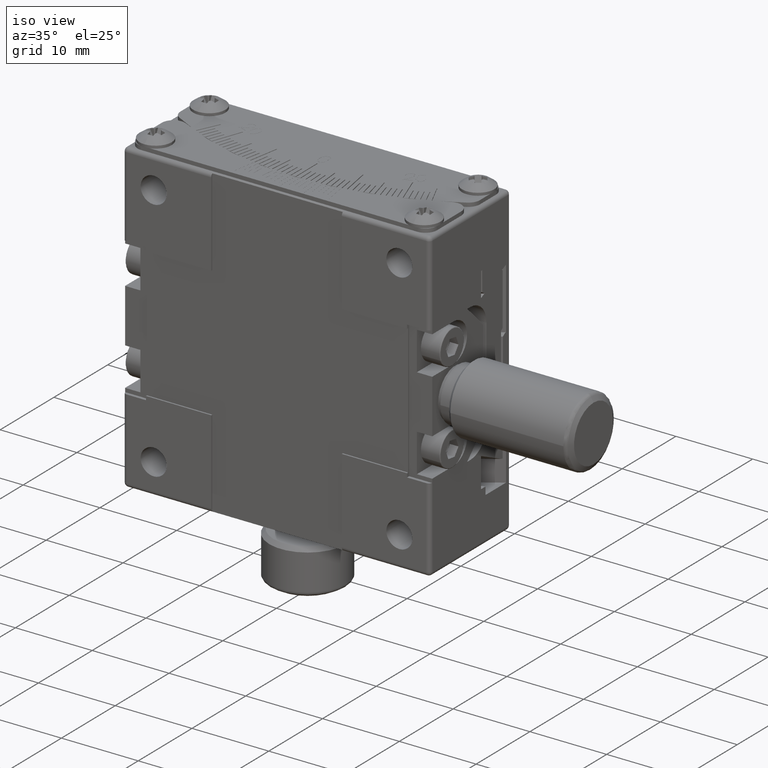
[diagram: clean part render]
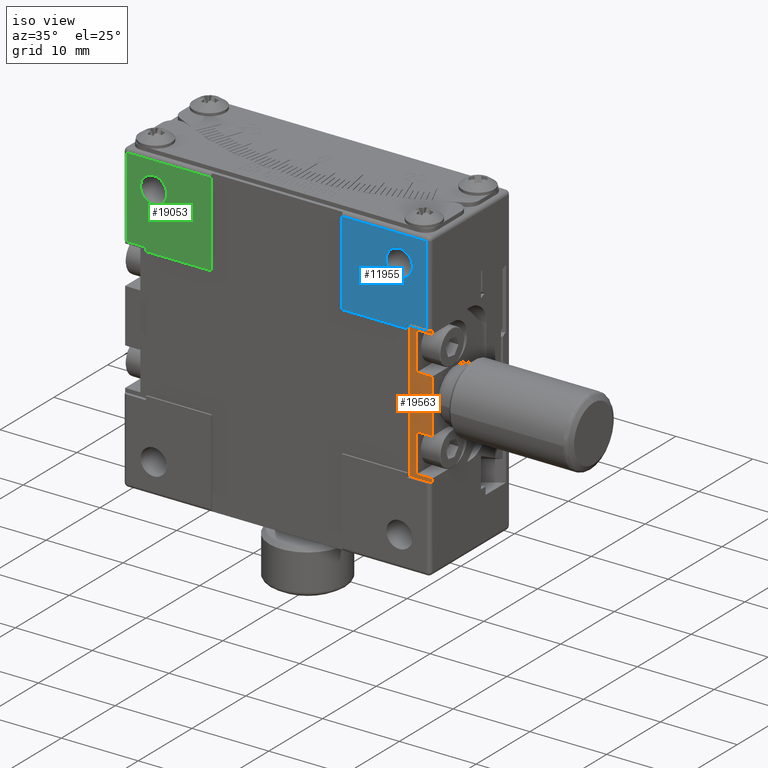
[diagram: same view with three faces highlighted in distinct colors, each labeled with its STEP entity id]
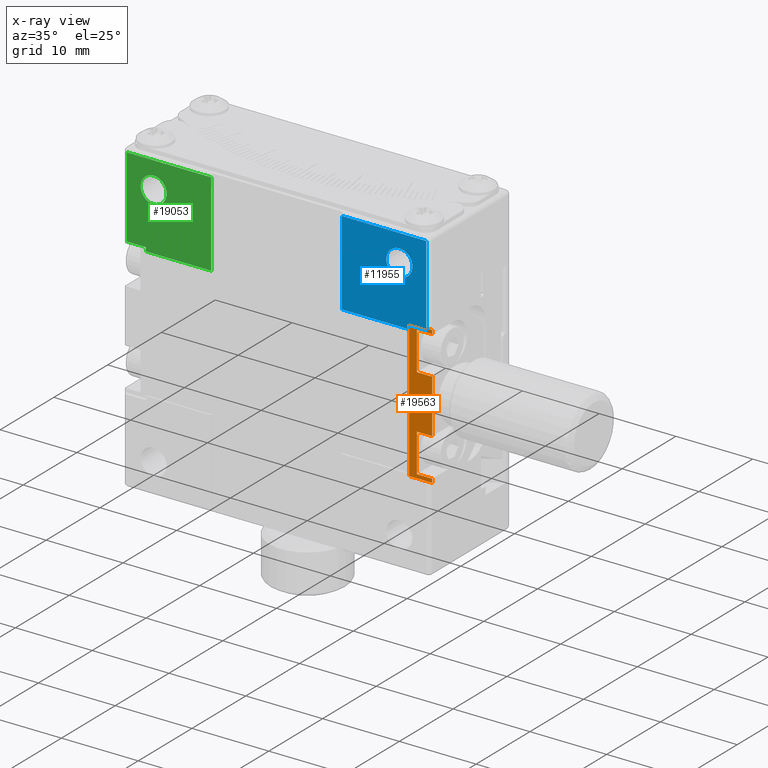
[diagram: x-ray of the same camera — body ghosted, the three highlighted faces saturated]
A machine part, iso view with three faces highlighted in distinct colors.
The next image is the same camera in x-ray (body ghosted, the three faces saturated) — at least one of them is partly hidden behind the body in this view.
Their STEP definitions:

[orange] entity #19563 — the highlighted planar face has unit normal (0, 1, 0).
#74 = EDGE_CURVE ( 'NONE', #3429, #2814, #4536, .T. ) ;
#96 = AXIS2_PLACEMENT_3D ( 'NONE', #27440, #11293, #26867 ) ;
#136 = FACE_OUTER_BOUND ( 'NONE', #6064, .T. ) ;
#151 = DIRECTION ( 'NONE',  ( -1.000000000000000000, 5.419128459088559373E-17, 2.053761849782280191E-19 ) ) ;
#413 = ORIENTED_EDGE ( 'NONE', *, *, #12086, .F. ) ;
#559 = PLANE ( 'NONE',  #96 ) ;
#628 = VECTOR ( 'NONE', #151, 1000.000000000000000 ) ;
#752 = CARTESIAN_POINT ( 'NONE',  ( 17.00000000000000000, 0.4000000000000065170, 9.000000000000000000 ) ) ;
#778 = LINE ( 'NONE', #9603, #24970 ) ;
#845 = CARTESIAN_POINT ( 'NONE',  ( 18.00000000000000000, 0.4000000000000060174, 8.500000000000000000 ) ) ;
#1062 = ORIENTED_EDGE ( 'NONE', *, *, #11720, .T. ) ;
#1256 = VERTEX_POINT ( 'NONE', #10592 ) ;
#1401 = LINE ( 'NONE', #16677, #3801 ) ;
#1622 = EDGE_CURVE ( 'NONE', #24540, #1256, #21567, .T. ) ;
#2502 = LINE ( 'NONE', #18199, #628 ) ;
#2814 = VERTEX_POINT ( 'NONE', #21132 ) ;
#3208 = VECTOR ( 'NONE', #15103, 1000.000000000000000 ) ;
#3429 = VERTEX_POINT ( 'NONE', #16664 ) ;
#3571 = ORIENTED_EDGE ( 'NONE', *, *, #8883, .F. ) ;
#3801 = VECTOR ( 'NONE', #8012, 1000.000000000000000 ) ;
#4293 = VECTOR ( 'NONE', #18372, 1000.000000000000000 ) ;
#4536 = LINE ( 'NONE', #9509, #21882 ) ;
#5028 = CARTESIAN_POINT ( 'NONE',  ( 20.00000000000000000, 0.4000000000000060174, -9.000000000000000000 ) ) ;
#5312 = LINE ( 'NONE', #752, #4293 ) ;
#5513 = DIRECTION ( 'NONE',  ( 1.000000000000000000, -5.419128459088559373E-17, -2.053761849782280191E-19 ) ) ;
#5653 = LINE ( 'NONE', #19147, #27222 ) ;
#5780 = EDGE_CURVE ( 'NONE', #23413, #22223, #12555, .T. ) ;
#6064 = EDGE_LOOP ( 'NONE', ( #20745, #1062, #28364, #3571, #23333, #14900, #15729, #23854, #25422, #28958, #10294, #24576, #413, #22881 ) ) ;
#6232 = EDGE_CURVE ( 'NONE', #2814, #10015, #8692, .T. ) ;
#6294 = LINE ( 'NONE', #6730, #9519 ) ;
#6362 = VECTOR ( 'NONE', #5513, 1000.000000000000000 ) ;
#6500 = EDGE_CURVE ( 'NONE', #24540, #27684, #25398, .T. ) ;
#6592 = VERTEX_POINT ( 'NONE', #12042 ) ;
#6730 = CARTESIAN_POINT ( 'NONE',  ( 18.00000000000000000, 0.4000000000000060174, -8.500000000000000000 ) ) ;
#7044 = CARTESIAN_POINT ( 'NONE',  ( 20.00000000000000000, 0.4000000000000060174, 3.500000000000000000 ) ) ;
#7538 = DIRECTION ( 'NONE',  ( -2.053761849782180283E-19, -1.112959928834533873E-35, -1.000000000000000000 ) ) ;
#7551 = VECTOR ( 'NONE', #13057, 1000.000000000000000 ) ;
#7929 = CARTESIAN_POINT ( 'NONE',  ( 9.799390266571641916, 0.4000000000000065170, 8.500000000000000000 ) ) ;
#8012 = DIRECTION ( 'NONE',  ( -2.053761849782180283E-19, -1.112959928834533873E-35, -1.000000000000000000 ) ) ;
#8397 = DIRECTION ( 'NONE',  ( 1.000000000000000000, -5.419128459088559373E-17, -2.053761849782280191E-19 ) ) ;
#8692 = LINE ( 'NONE', #21906, #19212 ) ;
#8803 = VERTEX_POINT ( 'NONE', #12248 ) ;
#8883 = EDGE_CURVE ( 'NONE', #1256, #20627, #5653, .T. ) ;
#9509 = CARTESIAN_POINT ( 'NONE',  ( 20.00000000000000000, 0.4000000000000060174, 9.000000000000000000 ) ) ;
#9519 = VECTOR ( 'NONE', #19779, 1000.000000000000000 ) ;
#9603 = CARTESIAN_POINT ( 'NONE',  ( 20.00000000000000000, 0.4000000000000060174, 9.000000000000000000 ) ) ;
#10015 = VERTEX_POINT ( 'NONE', #28582 ) ;
#10294 = ORIENTED_EDGE ( 'NONE', *, *, #23393, .F. ) ;
#10592 = CARTESIAN_POINT ( 'NONE',  ( 18.00000000000000000, 0.4000000000000060174, 3.500000000000000000 ) ) ;
#10604 = DIRECTION ( 'NONE',  ( -1.000000000000000000, 5.419128459088559373E-17, 2.053761849782280191E-19 ) ) ;
#10830 = VECTOR ( 'NONE', #8397, 1000.000000000000000 ) ;
#11293 = DIRECTION ( 'NONE',  ( 5.419128459088559373E-17, 1.000000000000000000, 1.112959928834513827E-35 ) ) ;
#11720 = EDGE_CURVE ( 'NONE', #19997, #8803, #26607, .T. ) ;
#12042 = CARTESIAN_POINT ( 'NONE',  ( 19.98989794855664925, 0.4000000000000060174, -9.000000000000000000 ) ) ;
#12086 = EDGE_CURVE ( 'NONE', #22223, #26857, #13357, .T. ) ;
#12248 = CARTESIAN_POINT ( 'NONE',  ( 20.00000000000000000, 0.4000000000000060174, -3.500000000000000000 ) ) ;
#12333 = VECTOR ( 'NONE', #19229, 1000.000000000000000 ) ;
#12555 = LINE ( 'NONE', #17229, #6362 ) ;
#13057 = DIRECTION ( 'NONE',  ( -2.053761849782180283E-19, -1.112959928834533873E-35, -1.000000000000000000 ) ) ;
#13357 = LINE ( 'NONE', #19805, #7551 ) ;
#13519 = CARTESIAN_POINT ( 'NONE',  ( 18.00000000000000000, 0.4000000000000060174, -8.500000000000000000 ) ) ;
#13589 = EDGE_CURVE ( 'NONE', #3429, #27684, #1401, .T. ) ;
#14118 = CARTESIAN_POINT ( 'NONE',  ( 20.00000000000000000, 0.4000000000000060174, -8.500000000000000000 ) ) ;
#14366 = EDGE_CURVE ( 'NONE', #10015, #23839, #5312, .T. ) ;
#14658 = CARTESIAN_POINT ( 'NONE',  ( 20.00000000000000000, 0.4000000000000060174, -9.000000000000000000 ) ) ;
#14900 = ORIENTED_EDGE ( 'NONE', *, *, #6500, .T. ) ;
#15103 = DIRECTION ( 'NONE',  ( -2.053761849782180283E-19, -1.112959928834533873E-35, -1.000000000000000000 ) ) ;
#15729 = ORIENTED_EDGE ( 'NONE', *, *, #13589, .F. ) ;
#16025 = LINE ( 'NONE', #5028, #24511 ) ;
#16664 = CARTESIAN_POINT ( 'NONE',  ( 20.00000000000000000, 0.4000000000000060174, 9.000000000000000000 ) ) ;
#16677 = CARTESIAN_POINT ( 'NONE',  ( 20.00000000000000000, 0.4000000000000060174, 9.000000000000000000 ) ) ;
#17229 = CARTESIAN_POINT ( 'NONE',  ( 9.799390266571641916, 0.4000000000000065170, -8.500000000000000000 ) ) ;
#18199 = CARTESIAN_POINT ( 'NONE',  ( 20.00000000000000000, 0.4000000000000060174, -9.000000000000000000 ) ) ;
#18372 = DIRECTION ( 'NONE',  ( -2.053761849782180283E-19, -1.112959928834533873E-35, -1.000000000000000000 ) ) ;
#18458 = DIRECTION ( 'NONE',  ( -1.000000000000000000, 5.419128459088559373E-17, 2.053761849782280191E-19 ) ) ;
#18881 = EDGE_CURVE ( 'NONE', #20627, #8803, #778, .T. ) ;
#19147 = CARTESIAN_POINT ( 'NONE',  ( 9.799390266571641916, 0.4000000000000065170, 3.500000000000000000 ) ) ;
#19212 = VECTOR ( 'NONE', #10604, 1000.000000000000000 ) ;
#19229 = DIRECTION ( 'NONE',  ( 1.000000000000000000, -5.419128459088559373E-17, -2.053761849782280191E-19 ) ) ;
#19467 = CARTESIAN_POINT ( 'NONE',  ( 17.00000000000000000, 0.4000000000000060174, -9.000000000000000000 ) ) ;
#19563 = ADVANCED_FACE ( 'NONE', ( #136 ), #559, .F. ) ;
#19779 = DIRECTION ( 'NONE',  ( -2.053761849782180283E-19, -1.112959928834533873E-35, -1.000000000000000000 ) ) ;
#19805 = CARTESIAN_POINT ( 'NONE',  ( 20.00000000000000000, 0.4000000000000060174, 9.000000000000000000 ) ) ;
#19997 = VERTEX_POINT ( 'NONE', #20787 ) ;
#20368 = CARTESIAN_POINT ( 'NONE',  ( 20.00000000000000000, 0.4000000000000060174, 8.500000000000000000 ) ) ;
#20627 = VERTEX_POINT ( 'NONE', #7044 ) ;
#20745 = ORIENTED_EDGE ( 'NONE', *, *, #22706, .F. ) ;
#20787 = CARTESIAN_POINT ( 'NONE',  ( 18.00000000000000000, 0.4000000000000060174, -3.500000000000000000 ) ) ;
#20961 = EDGE_CURVE ( 'NONE', #26857, #6592, #16025, .T. ) ;
#21132 = CARTESIAN_POINT ( 'NONE',  ( 19.98989794855664925, 0.4000000000000060174, 9.000000000000000000 ) ) ;
#21567 = LINE ( 'NONE', #23920, #3208 ) ;
#21882 = VECTOR ( 'NONE', #18458, 1000.000000000000000 ) ;
#21906 = CARTESIAN_POINT ( 'NONE',  ( 20.00000000000000000, 0.4000000000000060174, 9.000000000000000000 ) ) ;
#22196 = CARTESIAN_POINT ( 'NONE',  ( 9.799390266571641916, 0.4000000000000065170, -3.500000000000000000 ) ) ;
#22223 = VERTEX_POINT ( 'NONE', #14118 ) ;
#22706 = EDGE_CURVE ( 'NONE', #19997, #23413, #6294, .T. ) ;
#22881 = ORIENTED_EDGE ( 'NONE', *, *, #5780, .F. ) ;
#23333 = ORIENTED_EDGE ( 'NONE', *, *, #1622, .F. ) ;
#23393 = EDGE_CURVE ( 'NONE', #6592, #23839, #2502, .T. ) ;
#23413 = VERTEX_POINT ( 'NONE', #13519 ) ;
#23712 = DIRECTION ( 'NONE',  ( 1.000000000000000000, -5.419128459088559373E-17, -2.053761849782280191E-19 ) ) ;
#23839 = VERTEX_POINT ( 'NONE', #19467 ) ;
#23854 = ORIENTED_EDGE ( 'NONE', *, *, #74, .T. ) ;
#23920 = CARTESIAN_POINT ( 'NONE',  ( 18.00000000000000000, 0.4000000000000060174, 8.500000000000000000 ) ) ;
#24511 = VECTOR ( 'NONE', #25132, 1000.000000000000000 ) ;
#24540 = VERTEX_POINT ( 'NONE', #845 ) ;
#24576 = ORIENTED_EDGE ( 'NONE', *, *, #20961, .F. ) ;
#24970 = VECTOR ( 'NONE', #7538, 1000.000000000000000 ) ;
#25132 = DIRECTION ( 'NONE',  ( -1.000000000000000000, 5.419128459088559373E-17, 2.053761849782280191E-19 ) ) ;
#25398 = LINE ( 'NONE', #7929, #12333 ) ;
#25422 = ORIENTED_EDGE ( 'NONE', *, *, #6232, .T. ) ;
#26607 = LINE ( 'NONE', #22196, #10830 ) ;
#26857 = VERTEX_POINT ( 'NONE', #14658 ) ;
#26867 = DIRECTION ( 'NONE',  ( 1.000000000000000000, -5.419128459088559373E-17, 0.000000000000000000 ) ) ;
#27222 = VECTOR ( 'NONE', #23712, 1000.000000000000000 ) ;
#27440 = CARTESIAN_POINT ( 'NONE',  ( 20.00000000000000000, 0.4000000000000060174, 9.000000000000000000 ) ) ;
#27684 = VERTEX_POINT ( 'NONE', #20368 ) ;
#28364 = ORIENTED_EDGE ( 'NONE', *, *, #18881, .F. ) ;
#28582 = CARTESIAN_POINT ( 'NONE',  ( 17.00000000000000000, 0.4000000000000060174, 9.000000000000000000 ) ) ;
#28958 = ORIENTED_EDGE ( 'NONE', *, *, #14366, .T. ) ;

[blue] entity #11955 — the highlighted planar face has unit normal (-0, 1, 0).
#218 = CARTESIAN_POINT ( 'NONE',  ( 16.00000000000000000, 0.000000000000000000, 16.00000000000000000 ) ) ;
#841 = VECTOR ( 'NONE', #23513, 1000.000000000000000 ) ;
#1111 = EDGE_CURVE ( 'NONE', #23588, #16554, #5616, .T. ) ;
#1326 = FACE_OUTER_BOUND ( 'NONE', #15765, .T. ) ;
#1450 = LINE ( 'NONE', #26257, #8235 ) ;
#2067 = VERTEX_POINT ( 'NONE', #12832 ) ;
#2135 = DIRECTION ( 'NONE',  ( 0.000000000000000000, 0.000000000000000000, 1.000000000000000000 ) ) ;
#2796 = CARTESIAN_POINT ( 'NONE',  ( 16.00000000000000000, 0.000000000000000000, 16.00000000000000000 ) ) ;
#2838 = ORIENTED_EDGE ( 'NONE', *, *, #28900, .F. ) ;
#3093 = DIRECTION ( 'NONE',  ( 1.000000000000000000, 1.734723475976804876E-16, 0.000000000000000000 ) ) ;
#3320 = EDGE_CURVE ( 'NONE', #23965, #10522, #27107, .T. ) ;
#4043 = EDGE_CURVE ( 'NONE', #2067, #23965, #1450, .T. ) ;
#4628 = ORIENTED_EDGE ( 'NONE', *, *, #4795, .F. ) ;
#4759 = AXIS2_PLACEMENT_3D ( 'NONE', #23792, #8076, #3093 ) ;
#4795 = EDGE_CURVE ( 'NONE', #22335, #23588, #16940, .T. ) ;
#5298 = CARTESIAN_POINT ( 'NONE',  ( 8.500000000000000000, 6.938893903907229955E-15, 19.50000000000000000 ) ) ;
#5616 = LINE ( 'NONE', #11780, #841 ) ;
#6843 = CARTESIAN_POINT ( 'NONE',  ( 8.500000000000000000, 6.938893903907229955E-15, 20.00000000000000000 ) ) ;
#7068 = DIRECTION ( 'NONE',  ( 0.000000000000000000, 0.000000000000000000, 1.000000000000000000 ) ) ;
#7792 = PLANE ( 'NONE',  #4759 ) ;
#8076 = DIRECTION ( 'NONE',  ( -1.734723475976804876E-16, 1.000000000000000000, 0.000000000000000000 ) ) ;
#8235 = VECTOR ( 'NONE', #15101, 1000.000000000000000 ) ;
#8511 = VECTOR ( 'NONE', #27521, 1000.000000000000000 ) ;
#9113 = VECTOR ( 'NONE', #26528, 1000.000000000000000 ) ;
#9444 = VECTOR ( 'NONE', #26271, 1000.000000000000000 ) ;
#9542 = CARTESIAN_POINT ( 'NONE',  ( 17.00000000000000000, 6.938893903907229955E-15, 8.500000000000000000 ) ) ;
#9556 = ORIENTED_EDGE ( 'NONE', *, *, #21568, .T. ) ;
#10522 = VERTEX_POINT ( 'NONE', #5298 ) ;
#10599 = EDGE_CURVE ( 'NONE', #21967, #14029, #21452, .T. ) ;
#11780 = CARTESIAN_POINT ( 'NONE',  ( 8.500000000000000000, 6.938893903907229955E-15, 8.500000000000000000 ) ) ;
#11955 = ADVANCED_FACE ( 'NONE', ( #1326, #19231 ), #7792, .F. ) ;
#12109 = EDGE_CURVE ( 'NONE', #22335, #2067, #26571, .T. ) ;
#12242 = CARTESIAN_POINT ( 'NONE',  ( 8.500000000000000000, 6.938893903907229955E-15, 8.500000000000000000 ) ) ;
#12401 = CARTESIAN_POINT ( 'NONE',  ( 17.00000000000000000, 6.938893903907229955E-15, 9.000000000000000000 ) ) ;
#12832 = CARTESIAN_POINT ( 'NONE',  ( 19.50000000000000000, 6.938893903907229955E-15, 9.000000000000000000 ) ) ;
#12835 = EDGE_LOOP ( 'NONE', ( #9556, #20017 ) ) ;
#14029 = VERTEX_POINT ( 'NONE', #15278 ) ;
#14597 = ORIENTED_EDGE ( 'NONE', *, *, #12109, .T. ) ;
#15101 = DIRECTION ( 'NONE',  ( 0.000000000000000000, 0.000000000000000000, 1.000000000000000000 ) ) ;
#15128 = CARTESIAN_POINT ( 'NONE',  ( 17.00000000000000000, 6.938893903907229955E-15, 9.000000000000000000 ) ) ;
#15278 = CARTESIAN_POINT ( 'NONE',  ( 16.00000000000000000, 0.000000000000000000, 17.69999999999999929 ) ) ;
#15765 = EDGE_LOOP ( 'NONE', ( #20314, #20850, #2838, #24499, #4628, #14597 ) ) ;
#16554 = VERTEX_POINT ( 'NONE', #12242 ) ;
#16940 = LINE ( 'NONE', #12401, #24183 ) ;
#17016 = AXIS2_PLACEMENT_3D ( 'NONE', #218, #17691, #2135 ) ;
#17308 = CARTESIAN_POINT ( 'NONE',  ( 17.00000000000000000, 6.938893903907229955E-15, 9.000000000000000000 ) ) ;
#17560 = CARTESIAN_POINT ( 'NONE',  ( 8.500000000000000000, 6.938893903907229955E-15, 19.50000000000000000 ) ) ;
#17691 = DIRECTION ( 'NONE',  ( 0.000000000000000000, 1.000000000000000000, 0.000000000000000000 ) ) ;
#19009 = DIRECTION ( 'NONE',  ( 0.000000000000000000, 0.000000000000000000, -1.000000000000000000 ) ) ;
#19231 = FACE_BOUND ( 'NONE', #12835, .T. ) ;
#19749 = CARTESIAN_POINT ( 'NONE',  ( 19.50000000000000000, 6.938893903907229955E-15, 19.50000000000000000 ) ) ;
#19830 = CIRCLE ( 'NONE', #17016, 1.700000000000000178 ) ;
#20017 = ORIENTED_EDGE ( 'NONE', *, *, #10599, .T. ) ;
#20314 = ORIENTED_EDGE ( 'NONE', *, *, #4043, .T. ) ;
#20850 = ORIENTED_EDGE ( 'NONE', *, *, #3320, .T. ) ;
#21452 = CIRCLE ( 'NONE', #21913, 1.700000000000000178 ) ;
#21568 = EDGE_CURVE ( 'NONE', #14029, #21967, #19830, .T. ) ;
#21913 = AXIS2_PLACEMENT_3D ( 'NONE', #2796, #27469, #7068 ) ;
#21967 = VERTEX_POINT ( 'NONE', #22060 ) ;
#22060 = CARTESIAN_POINT ( 'NONE',  ( 16.00000000000000000, 0.000000000000000000, 14.30000000000000071 ) ) ;
#22335 = VERTEX_POINT ( 'NONE', #15128 ) ;
#22690 = LINE ( 'NONE', #6843, #8511 ) ;
#23513 = DIRECTION ( 'NONE',  ( -1.000000000000000000, 0.000000000000000000, -1.508455196501574881E-16 ) ) ;
#23588 = VERTEX_POINT ( 'NONE', #9542 ) ;
#23792 = CARTESIAN_POINT ( 'NONE',  ( -20.00000000000000000, 0.000000000000000000, 20.00000000000000000 ) ) ;
#23965 = VERTEX_POINT ( 'NONE', #19749 ) ;
#24183 = VECTOR ( 'NONE', #19009, 1000.000000000000000 ) ;
#24499 = ORIENTED_EDGE ( 'NONE', *, *, #1111, .F. ) ;
#26257 = CARTESIAN_POINT ( 'NONE',  ( 19.50000000000000000, 6.938893903907229955E-15, 20.00000000000000000 ) ) ;
#26271 = DIRECTION ( 'NONE',  ( 1.000000000000000000, 0.000000000000000000, 0.000000000000000000 ) ) ;
#26528 = DIRECTION ( 'NONE',  ( -1.000000000000000000, -1.734723475976804876E-16, 0.000000000000000000 ) ) ;
#26571 = LINE ( 'NONE', #17308, #9444 ) ;
#27107 = LINE ( 'NONE', #17560, #9113 ) ;
#27469 = DIRECTION ( 'NONE',  ( 0.000000000000000000, 1.000000000000000000, 0.000000000000000000 ) ) ;
#27521 = DIRECTION ( 'NONE',  ( -3.016910393003140393E-16, 0.000000000000000000, 1.000000000000000000 ) ) ;
#28900 = EDGE_CURVE ( 'NONE', #16554, #10522, #22690, .T. ) ;

[green] entity #19053 — the highlighted planar face has unit normal (-0, 1, 0).
#159 = CARTESIAN_POINT ( 'NONE',  ( -20.00000000000000000, 0.000000000000000000, 19.50000000000000000 ) ) ;
#306 = DIRECTION ( 'NONE',  ( -1.000000000000000000, -1.734723475976804876E-16, 0.000000000000000000 ) ) ;
#659 = CARTESIAN_POINT ( 'NONE',  ( -16.00000000000000000, 0.000000000000000000, 17.69999999999999929 ) ) ;
#871 = EDGE_CURVE ( 'NONE', #26299, #4730, #20499, .T. ) ;
#1188 = DIRECTION ( 'NONE',  ( 0.000000000000000000, 0.000000000000000000, -1.000000000000000000 ) ) ;
#1287 = EDGE_CURVE ( 'NONE', #18645, #16896, #16005, .T. ) ;
#1378 = CARTESIAN_POINT ( 'NONE',  ( -8.500000000000000000, 6.938893903907229955E-15, 20.00000000000000000 ) ) ;
#1652 = DIRECTION ( 'NONE',  ( -1.734723475976804876E-16, 1.000000000000000000, 0.000000000000000000 ) ) ;
#2865 = EDGE_CURVE ( 'NONE', #18009, #24797, #10269, .T. ) ;
#3805 = DIRECTION ( 'NONE',  ( 0.000000000000000000, 0.000000000000000000, -1.000000000000000000 ) ) ;
#4003 = FACE_BOUND ( 'NONE', #16232, .T. ) ;
#4730 = VERTEX_POINT ( 'NONE', #659 ) ;
#5417 = LINE ( 'NONE', #28163, #16860 ) ;
#5794 = DIRECTION ( 'NONE',  ( 0.000000000000000000, 0.000000000000000000, -1.000000000000000000 ) ) ;
#6646 = CARTESIAN_POINT ( 'NONE',  ( -20.00000000000000000, 0.000000000000000000, 20.00000000000000000 ) ) ;
#6836 = CIRCLE ( 'NONE', #11519, 1.700000000000000178 ) ;
#7288 = VERTEX_POINT ( 'NONE', #23685 ) ;
#7835 = AXIS2_PLACEMENT_3D ( 'NONE', #21819, #10654, #24451 ) ;
#8844 = PLANE ( 'NONE',  #13743 ) ;
#8877 = VERTEX_POINT ( 'NONE', #26053 ) ;
#10269 = LINE ( 'NONE', #28618, #25260 ) ;
#10283 = CARTESIAN_POINT ( 'NONE',  ( -19.50000000000000000, 0.000000000000000000, 20.00000000000000000 ) ) ;
#10448 = ORIENTED_EDGE ( 'NONE', *, *, #871, .T. ) ;
#10641 = CARTESIAN_POINT ( 'NONE',  ( -8.500000000000000000, 6.938893903907229955E-15, 19.50000000000000000 ) ) ;
#10654 = DIRECTION ( 'NONE',  ( 0.000000000000000000, 1.000000000000000000, 0.000000000000000000 ) ) ;
#11519 = AXIS2_PLACEMENT_3D ( 'NONE', #14533, #16738, #23491 ) ;
#11831 = CARTESIAN_POINT ( 'NONE',  ( -17.00000000000000000, 6.938893903907229955E-15, 8.500000000000000000 ) ) ;
#12098 = EDGE_CURVE ( 'NONE', #18009, #7288, #21722, .T. ) ;
#12917 = DIRECTION ( 'NONE',  ( -1.000000000000000000, 0.000000000000000000, 0.000000000000000000 ) ) ;
#13395 = VECTOR ( 'NONE', #5794, 1000.000000000000000 ) ;
#13743 = AXIS2_PLACEMENT_3D ( 'NONE', #6646, #1652, #28524 ) ;
#14445 = LINE ( 'NONE', #1378, #13395 ) ;
#14533 = CARTESIAN_POINT ( 'NONE',  ( -16.00000000000000000, 0.000000000000000000, 16.00000000000000000 ) ) ;
#15588 = CARTESIAN_POINT ( 'NONE',  ( -17.00000000000000000, 6.938893903907229955E-15, 9.000000000000000000 ) ) ;
#16005 = LINE ( 'NONE', #159, #28672 ) ;
#16041 = VECTOR ( 'NONE', #1188, 1000.000000000000000 ) ;
#16232 = EDGE_LOOP ( 'NONE', ( #17270, #10448 ) ) ;
#16596 = EDGE_CURVE ( 'NONE', #18645, #8877, #14445, .T. ) ;
#16738 = DIRECTION ( 'NONE',  ( 0.000000000000000000, 1.000000000000000000, 0.000000000000000000 ) ) ;
#16788 = ORIENTED_EDGE ( 'NONE', *, *, #12098, .F. ) ;
#16860 = VECTOR ( 'NONE', #23763, 1000.000000000000000 ) ;
#16896 = VERTEX_POINT ( 'NONE', #17003 ) ;
#17003 = CARTESIAN_POINT ( 'NONE',  ( -19.50000000000000000, 0.000000000000000000, 19.50000000000000000 ) ) ;
#17270 = ORIENTED_EDGE ( 'NONE', *, *, #18195, .T. ) ;
#17350 = FACE_OUTER_BOUND ( 'NONE', #18672, .T. ) ;
#18009 = VERTEX_POINT ( 'NONE', #15588 ) ;
#18045 = ORIENTED_EDGE ( 'NONE', *, *, #2865, .T. ) ;
#18195 = EDGE_CURVE ( 'NONE', #4730, #26299, #6836, .T. ) ;
#18645 = VERTEX_POINT ( 'NONE', #10641 ) ;
#18672 = EDGE_LOOP ( 'NONE', ( #23486, #20353, #16788, #18045, #23786, #25207 ) ) ;
#19053 = ADVANCED_FACE ( 'NONE', ( #17350, #4003 ), #8844, .F. ) ;
#19097 = LINE ( 'NONE', #10283, #16041 ) ;
#20313 = EDGE_CURVE ( 'NONE', #16896, #7288, #19097, .T. ) ;
#20353 = ORIENTED_EDGE ( 'NONE', *, *, #20313, .T. ) ;
#20499 = CIRCLE ( 'NONE', #7835, 1.700000000000000178 ) ;
#21722 = LINE ( 'NONE', #22012, #26797 ) ;
#21819 = CARTESIAN_POINT ( 'NONE',  ( -16.00000000000000000, 0.000000000000000000, 16.00000000000000000 ) ) ;
#22012 = CARTESIAN_POINT ( 'NONE',  ( -17.00000000000000000, 6.938893903907229955E-15, 9.000000000000000000 ) ) ;
#23486 = ORIENTED_EDGE ( 'NONE', *, *, #1287, .T. ) ;
#23491 = DIRECTION ( 'NONE',  ( 0.000000000000000000, 0.000000000000000000, 1.000000000000000000 ) ) ;
#23685 = CARTESIAN_POINT ( 'NONE',  ( -19.50000000000000000, 6.938893903907229955E-15, 9.000000000000000000 ) ) ;
#23763 = DIRECTION ( 'NONE',  ( -1.000000000000000000, 0.000000000000000000, 3.016910393003140393E-16 ) ) ;
#23786 = ORIENTED_EDGE ( 'NONE', *, *, #27411, .F. ) ;
#24451 = DIRECTION ( 'NONE',  ( 0.000000000000000000, 0.000000000000000000, 1.000000000000000000 ) ) ;
#24797 = VERTEX_POINT ( 'NONE', #11831 ) ;
#25207 = ORIENTED_EDGE ( 'NONE', *, *, #16596, .F. ) ;
#25260 = VECTOR ( 'NONE', #3805, 1000.000000000000000 ) ;
#26053 = CARTESIAN_POINT ( 'NONE',  ( -8.500000000000000000, 6.938893903907229955E-15, 8.500000000000000000 ) ) ;
#26299 = VERTEX_POINT ( 'NONE', #27060 ) ;
#26797 = VECTOR ( 'NONE', #12917, 1000.000000000000000 ) ;
#27060 = CARTESIAN_POINT ( 'NONE',  ( -16.00000000000000000, 0.000000000000000000, 14.30000000000000071 ) ) ;
#27411 = EDGE_CURVE ( 'NONE', #8877, #24797, #5417, .T. ) ;
#28163 = CARTESIAN_POINT ( 'NONE',  ( -20.00000000000000000, 6.938893903907229955E-15, 8.500000000000000000 ) ) ;
#28524 = DIRECTION ( 'NONE',  ( 1.000000000000000000, 1.734723475976804876E-16, 0.000000000000000000 ) ) ;
#28618 = CARTESIAN_POINT ( 'NONE',  ( -17.00000000000000000, 6.938893903907229955E-15, 9.000000000000000000 ) ) ;
#28672 = VECTOR ( 'NONE', #306, 1000.000000000000000 ) ;